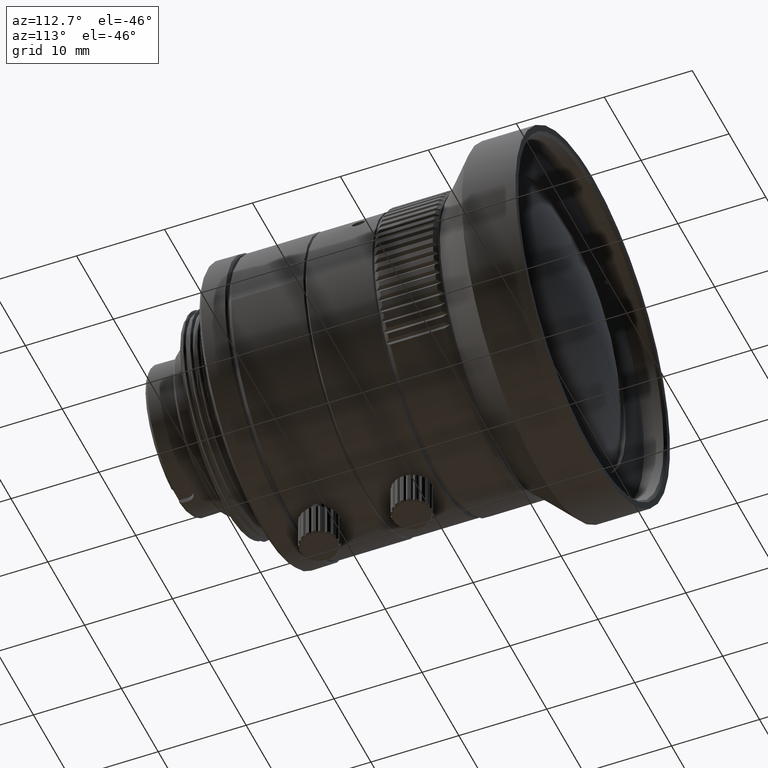
[diagram: clean part render]
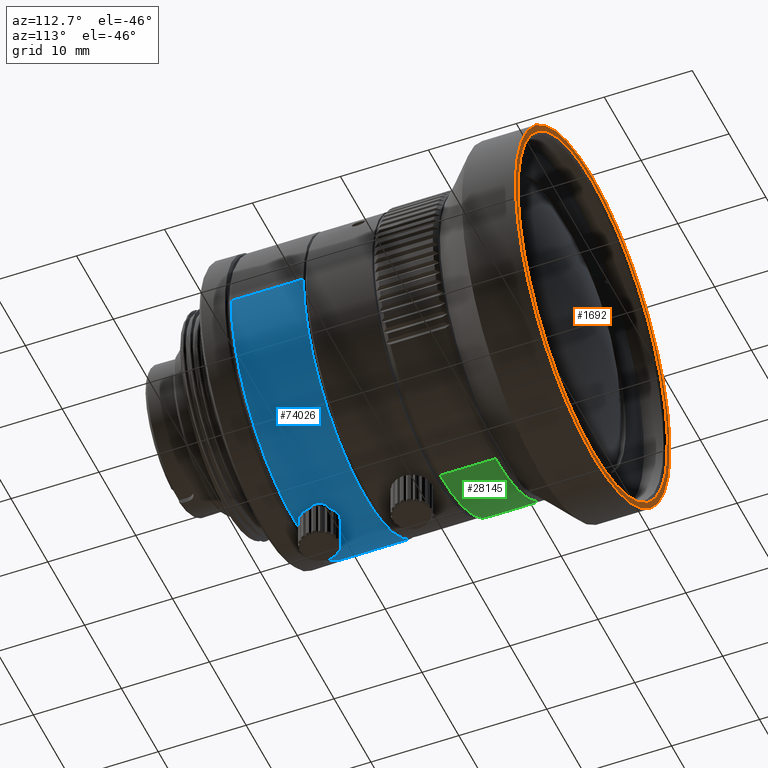
[diagram: same view with three faces highlighted in distinct colors, each labeled with its STEP entity id]
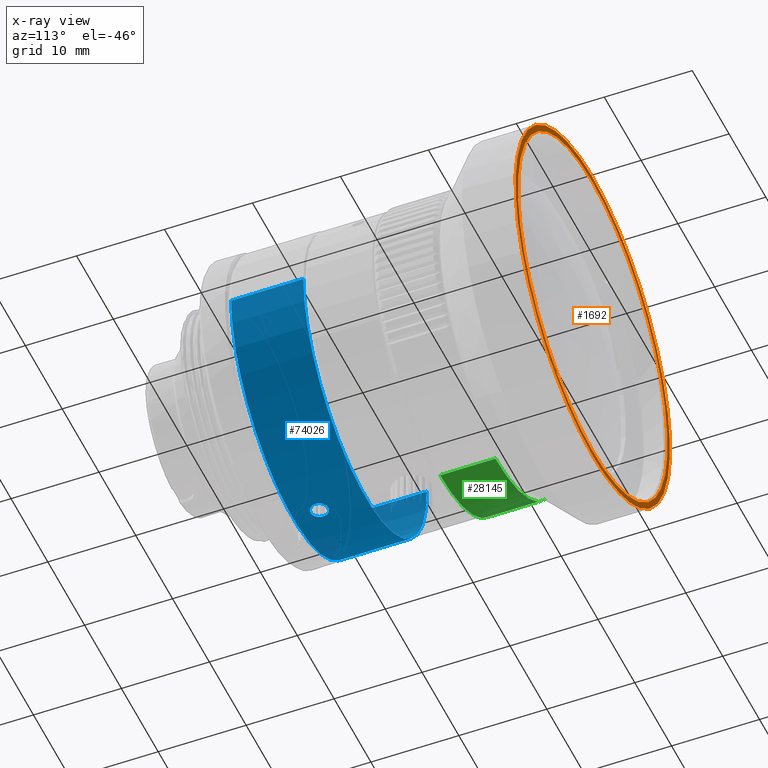
[diagram: x-ray of the same camera — body ghosted, the three highlighted faces saturated]
A machine part, auxiliary view with three faces highlighted in distinct colors.
The next image is the same camera in x-ray (body ghosted, the three faces saturated) — at least one of them is partly hidden behind the body in this view.
Their STEP definitions:

[orange] entity #1692 — the highlighted planar face has unit normal (0, 1, 0).
#124 = CARTESIAN_POINT ( 'NONE',  ( 3.308883417756427914, 27.77094953857999826, -20.02970275189952787 ) ) ;
#586 = CARTESIAN_POINT ( 'NONE',  ( 15.54227877841246830, 27.77094953857999471, -13.08791756640468584 ) ) ;
#1055 = CARTESIAN_POINT ( 'NONE',  ( 14.88352006305149011, 27.77094953858001247, -13.82048584559242066 ) ) ;
#1191 = CARTESIAN_POINT ( 'NONE',  ( -19.95756926664443398, 27.77094953858000537, 3.712921306351357309 ) ) ;
#1524 = CARTESIAN_POINT ( 'NONE',  ( 19.32074619874360266, 27.77094953858000181, -6.291415398159006855 ) ) ;
#1661 = CARTESIAN_POINT ( 'NONE',  ( -10.08941677592255637, 27.77094953858000892, 17.62116052388753218 ) ) ;
#1692 = ADVANCED_FACE ( 'NONE', ( #12418, #33177 ), #24688, .T. ) ;
#1981 = CARTESIAN_POINT ( 'NONE',  ( 19.77129405529472805, 27.77094953858000181, -4.608273709505491311 ) ) ;
#2117 = CARTESIAN_POINT ( 'NONE',  ( -18.97906917671840077, 27.77094953857999471, -7.203965547156065519 ) ) ;
#2449 = CARTESIAN_POINT ( 'NONE',  ( 18.47502927800732664, 27.77094953858000181, 8.436784630475480995 ) ) ;
#2583 = CARTESIAN_POINT ( 'NONE',  ( -12.28106360732852842, 27.77094953857999826, 16.22436297494803625 ) ) ;
#2739 = CARTESIAN_POINT ( 'NONE',  ( -9.306175334618080441, 27.77094953858000537, 18.87549216864756829 ) ) ;
#3055 = CARTESIAN_POINT ( 'NONE',  ( -19.96813284271629385, 27.77094953858000181, -3.655682769673688437 ) ) ;
#3209 = CARTESIAN_POINT ( 'NONE',  ( -12.80978563038172346, 27.77094953858000181, 16.69726013665102471 ) ) ;
#3230 = CARTESIAN_POINT ( 'NONE',  ( 20.32834962240369592, 27.77094953857999826, 5.444933938691601583 ) ) ;
#3521 = CARTESIAN_POINT ( 'NONE',  ( -17.17633881941769047, 27.77094953858000537, -10.81995371662929450 ) ) ;
#3702 = CARTESIAN_POINT ( 'NONE',  ( 20.99999999999999289, 27.77094953857999826, 1.374446785945533156 ) ) ;
#4152 = CARTESIAN_POINT ( 'NONE',  ( -5.444933939720859151, 27.77094953858000537, 20.32834962212637819 ) ) ;
#4462 = CARTESIAN_POINT ( 'NONE',  ( -17.62116052458069504, 27.77094953857999471, -10.08941677472052234 ) ) ;
#4793 = CARTESIAN_POINT ( 'NONE',  ( 13.19658084020114863, 27.77094953858000537, 15.45147894193493876 ) ) ;
#4925 = CARTESIAN_POINT ( 'NONE',  ( -15.34494428986156755, 27.77094953857999826, -13.36353846735306128 ) ) ;
#5080 = CARTESIAN_POINT ( 'NONE',  ( -6.766528825490603083, 27.77094953858000181, -19.92744819642330611 ) ) ;
#5833 = CARTESIAN_POINT ( 'NONE',  ( 7.402879493661681742, 27.77094953858000537, -18.90280562963060262 ) ) ;
#6453 = CARTESIAN_POINT ( 'NONE',  ( -18.87549216890465686, 27.77094953857999826, -9.306175334096630891 ) ) ;
#7195 = CARTESIAN_POINT ( 'NONE',  ( 0.6506301344887496230, 27.77094953857999826, -20.30000000008906724 ) ) ;
#7499 = VERTEX_POINT ( 'NONE', #91115 ) ;
#8127 = CARTESIAN_POINT ( 'NONE',  ( 11.86569896295919335, 27.77094953858000181, -16.48495743591383444 ) ) ;
#8266 = CARTESIAN_POINT ( 'NONE',  ( -6.393169122673925564, 27.77094953858000181, 19.27204896547289792 ) ) ;
#8598 = CARTESIAN_POINT ( 'NONE',  ( 19.95918469027320441, 27.77094953857999471, 3.705241636535025584 ) ) ;
#8734 = CARTESIAN_POINT ( 'NONE',  ( -20.25766574759400029, 27.77094953858000892, -1.547864095263284057 ) ) ;
#9055 = CARTESIAN_POINT ( 'NONE',  ( 17.75786521809117957, 27.77094953857999826, -9.873225691374626578 ) ) ;
#9192 = CARTESIAN_POINT ( 'NONE',  ( -19.27204896591742411, 27.77094953857999826, -6.393169121327086479 ) ) ;
#9508 = CARTESIAN_POINT ( 'NONE',  ( 20.00516139876618027, 27.77094953857999826, 3.454838905718677466 ) ) ;
#9639 = CARTESIAN_POINT ( 'NONE',  ( -16.79705040911274949, 27.77094953857999471, 11.39989070945241423 ) ) ;
#9800 = CARTESIAN_POINT ( 'NONE',  ( -6.766528826591597934, 27.77094953857999116, 19.92744819604945761 ) ) ;
#9972 = CARTESIAN_POINT ( 'NONE',  ( 20.10134101169738585, 27.77094953857999826, 2.869478651132976843 ) ) ;
#10105 = CARTESIAN_POINT ( 'NONE',  ( -3.617518985897838935, 27.77094953857999116, 19.97508195558300059 ) ) ;
#10266 = CARTESIAN_POINT ( 'NONE',  ( -16.69726013771265372, 27.77094953857999826, 12.80978562899792017 ) ) ;
#10581 = CARTESIAN_POINT ( 'NONE',  ( -11.39989071060519699, 27.77094953858000181, -16.79705040832981666 ) ) ;
#10759 = CARTESIAN_POINT ( 'NONE',  ( 20.86463215453198572, 27.77094953857999826, 2.748859585985782061 ) ) ;
#10914 = CARTESIAN_POINT ( 'NONE',  ( 2.591142058577005525, 27.77094953858000181, 20.17599266016187798 ) ) ;
#11393 = CARTESIAN_POINT ( 'NONE',  ( 8.028496943604281455, 27.77094953857999471, 18.64513728434717876 ) ) ;
#11663 = B_SPLINE_CURVE_WITH_KNOTS ( 'NONE', 3,
 ( #50872, #15511, #79639, #87184, #80109, #15044, #44278, #37205, #65953, #30133, #58888, #87645, #32459, #68745, #31986, #83838, #69219, #3702, #10759, #3230, #39998, #61220, #53664, #47077, #33397, #18768, #76302, #89032, #68269, #54138, #82429, #19236, #33866, #60740 ),
 .UNSPECIFIED., .F., .F.,
 ( 4, 2, 2, 2, 2, 2, 2, 2, 2, 2, 2, 2, 2, 2, 2, 2, 4 ),
 ( 0.000000000000000000, 0.06249999999999997224, 0.1249999999999999445, 0.1874999999999999167, 0.2499999999999998890, 0.3124999999999998890, 0.3749999999999998335, 0.4374999999999997780, 0.4999999999999997780, 0.5624999999999997780, 0.6249999999999997780, 0.6874999999999996669, 0.7499999999999996669, 0.8124999999999997780, 0.8749999999999997780, 0.9374999999999998890, 1.000000000000000000 ),
 .UNSPECIFIED. ) ;
#11863 = CARTESIAN_POINT ( 'NONE',  ( 4.033420172732584241, 27.77094953858001247, 19.89531011580194431 ) ) ;
#12418 = FACE_BOUND ( 'NONE', #89078, .T. ) ;
#12454 = CARTESIAN_POINT ( 'NONE',  ( -13.08168690005598300, 27.77094953858000181, -15.55074834970034026 ) ) ;
#12611 = CARTESIAN_POINT ( 'NONE',  ( -9.306175333575204434, 27.77094953857999826, -18.87549216916173478 ) ) ;
#13248 = CARTESIAN_POINT ( 'NONE',  ( -2.778684160553780139E-09, 27.77094953857891468, -20.30000000000108784 ) ) ;
#13873 = B_SPLINE_CURVE_WITH_KNOTS ( 'NONE', 3,
 ( #36095, #49774, #64844, #29023, #45486, #66252, #52098, #10105, #52559, #22879, #22415, #81326, #8266, #74241, #37035, #45951, #51169, #38410, #15337, #24265, #1661, #31339, #65784, #51628, #74707, #2583, #87936, #30881, #80400, #16721, #79936, #9639, #23348, #60561, #44103, #15802, #23801, #30422, #80867, #59634, #72858, #58717, #66707, #53013, #38874, #81779, #44575, #73328, #17185, #88395, #1191, #88854, #29964, #87475, #8734, #37504, #16267, #67627, #45043, #67161, #3055, #59177, #60095, #73790, #9192, #37957, #2117, #31805, #68558, #54423, #33216, #82244, #4462, #26602, #3521, #69032, #48288, #18591, #4925, #46891, #12454, #17648, #62432, #10581, #39343, #75649, #24732, #83188, #55351, #47357, #61969, #41211, #61502, #46416, #69959, #47824, #75179, #76120, #77044, #32745, #39811, #68087, #33682, #40284, #89790, #32271 ),
 .UNSPECIFIED., .F., .F.,
 ( 4, 1, 1, 1, 1, 1, 2, 2, 1, 1, 1, 1, 2, 2, 1, 1, 1, 2, 2, 2, 1, 1, 1, 2, 2, 1, 1, 1, 1, 2, 2, 1, 1, 1, 1, 1, 2, 2, 2, 1, 1, 1, 1, 1, 2, 2, 1, 1, 1, 1, 2, 2, 1, 1, 1, 2, 2, 2, 1, 1, 1, 2, 2, 1, 1, 1, 1, 2, 2, 1, 1, 1, 1, 1, 2, 2, 4 ),
 ( 0.000000000000000000, 0.03125000000000165146, 0.04687500000000247719, 0.05468750000000290740, 0.05859375000000311556, 0.06054687500000320577, 0.06152343750000324740, 0.06250000000000327516, 0.09375000000000370537, 0.1093750000000039135, 0.1171875000000040801, 0.1210937500000041356, 0.1230468750000041633, 0.1250000000000041633, 0.1562500000000044409, 0.1718750000000044964, 0.1796875000000044964, 0.1835937500000045519, 0.1875000000000045797, 0.2500000000000046074, 0.2812500000000046629, 0.2968750000000047184, 0.3046875000000047184, 0.3085937500000047740, 0.3125000000000047740, 0.3437500000000053846, 0.3593750000000057176, 0.3671875000000058842, 0.3710937500000059397, 0.3730468750000059397, 0.3750000000000059397, 0.4062500000000054401, 0.4218750000000051625, 0.4296875000000049960, 0.4335937500000049405, 0.4355468750000048850, 0.4365234375000048850, 0.4375000000000048295, 0.5000000000000036637, 0.5312500000000031086, 0.5468750000000027756, 0.5546875000000026645, 0.5585937500000026645, 0.5605468750000026645, 0.5615234375000025535, 0.5625000000000025535, 0.5937500000000019984, 0.6093750000000016653, 0.6171875000000015543, 0.6210937500000015543, 0.6230468750000015543, 0.6250000000000014433, 0.6562500000000001110, 0.6718749999999995559, 0.6796874999999993339, 0.6835937499999990008, 0.6874999999999987788, 0.7499999999999972244, 0.7812499999999964473, 0.7968749999999961142, 0.8046874999999960032, 0.8085937499999960032, 0.8124999999999960032, 0.8437499999999968914, 0.8593749999999973355, 0.8671874999999975575, 0.8710937499999977796, 0.8730468749999978906, 0.8749999999999978906, 0.9062499999999987788, 0.9218749999999992228, 0.9296874999999994449, 0.9335937499999994449, 0.9355468749999994449, 0.9365234374999995559, 0.9374999999999995559, 1.000000000000000000 ),
 .UNSPECIFIED. ) ;
#14269 = CARTESIAN_POINT ( 'NONE',  ( -2.778684160553780139E-09, 27.77094953857891468, -20.30000000000108784 ) ) ;
#14732 = CARTESIAN_POINT ( 'NONE',  ( 6.617576824321831808, 27.77094953857999471, -19.19637443430599077 ) ) ;
#15044 = CARTESIAN_POINT ( 'NONE',  ( 9.306175333727885857, 27.77094953857999826, -18.87549216908822203 ) ) ;
#15203 = CARTESIAN_POINT ( 'NONE',  ( 13.56691697332045621, 27.77094953858000181, -15.10743791805652414 ) ) ;
#15337 = CARTESIAN_POINT ( 'NONE',  ( -8.110000200774397427, 27.77094953857999471, 18.62227052719136822 ) ) ;
#15511 = CARTESIAN_POINT ( 'NONE',  ( 1.374446785945534710, 27.77094953858000181, -20.99999999999999645 ) ) ;
#15669 = CARTESIAN_POINT ( 'NONE',  ( 8.344695252536387997, 27.77094953858000892, -18.51812346056600944 ) ) ;
#15802 = CARTESIAN_POINT ( 'NONE',  ( -17.88325381346683329, 27.77094953858000181, 9.649315338519720342 ) ) ;
#16130 = CARTESIAN_POINT ( 'NONE',  ( 19.86053378334532482, 27.77094953857999826, -4.201924854177388369 ) ) ;
#16267 = CARTESIAN_POINT ( 'NONE',  ( -20.05377964117828427, 27.77094953857999826, -3.158995985360611769 ) ) ;
#16589 = CARTESIAN_POINT ( 'NONE',  ( 16.72189856158729171, 27.77094953858000537, -11.50979730414395696 ) ) ;
#16721 = CARTESIAN_POINT ( 'NONE',  ( -16.29533824346587068, 27.77094953858000537, 12.11499284683576860 ) ) ;
#17051 = CARTESIAN_POINT ( 'NONE',  ( 18.70790086804200314, 27.77094953857999471, -7.880744550968081796 ) ) ;
#17185 = CARTESIAN_POINT ( 'NONE',  ( -19.94596895204935194, 27.77094953857999826, 3.774747814238838206 ) ) ;
#17343 = CARTESIAN_POINT ( 'NONE',  ( -21.00000000003797140, 27.77094953857998760, 1.374446785341223665 ) ) ;
#17648 = CARTESIAN_POINT ( 'NONE',  ( -12.11499284796009235, 27.77094953858000181, -16.29533824262900765 ) ) ;
#17809 = CARTESIAN_POINT ( 'NONE',  ( -18.22446357988059162, 27.77094953858000181, 10.52416415649888037 ) ) ;
#17988 = CARTESIAN_POINT ( 'NONE',  ( 14.53526648446618097, 27.77094953857999116, 14.17119781841828541 ) ) ;
#18458 = CARTESIAN_POINT ( 'NONE',  ( 6.145685434393162616, 27.77094953857999471, 19.36795497074173866 ) ) ;
#18549 = DIRECTION ( 'NONE',  ( 0.000000000000000000, -0.000000000000000000, 1.000000000000000000 ) ) ;
#18591 = CARTESIAN_POINT ( 'NONE',  ( -16.22436297576886588, 27.77094953858000181, -12.28106360623575988 ) ) ;
#18768 = CARTESIAN_POINT ( 'NONE',  ( 13.87736176219535622, 27.77094953857999826, 15.82112304763964516 ) ) ;
#18919 = CARTESIAN_POINT ( 'NONE',  ( 13.94331722324195155, 27.77094953858000537, 14.76931030568577974 ) ) ;
#19236 = CARTESIAN_POINT ( 'NONE',  ( 2.748859585985789611, 27.77094953857999826, 20.86463215453198572 ) ) ;
#20136 = CARTESIAN_POINT ( 'NONE',  ( -10.52416415700233010, 27.77094953858000181, -18.22446357958984819 ) ) ;
#20232 = EDGE_CURVE ( 'NONE', #90844, #55916, #29234, .T. ) ;
#22275 = CARTESIAN_POINT ( 'NONE',  ( 15.21009599153400060, 27.77094953858000181, 13.45131977901110787 ) ) ;
#22415 = CARTESIAN_POINT ( 'NONE',  ( -4.341043814380903143, 27.77094953857999826, 19.84135161912973544 ) ) ;
#22745 = CARTESIAN_POINT ( 'NONE',  ( 18.94248504014426615, 27.77094953857999471, 7.302224668862263179 ) ) ;
#22879 = CARTESIAN_POINT ( 'NONE',  ( -3.673625156001148806, 27.77094953857999826, 19.96484108387382861 ) ) ;
#23214 = CARTESIAN_POINT ( 'NONE',  ( 16.58154376172595335, 27.77094953857999471, -11.71287767462651530 ) ) ;
#23348 = CARTESIAN_POINT ( 'NONE',  ( -16.89468481182889192, 27.77094953858000181, 11.25465927339194039 ) ) ;
#23667 = CARTESIAN_POINT ( 'NONE',  ( 19.91075064786128834, 27.77094953857999116, 3.957127878431432322 ) ) ;
#23801 = CARTESIAN_POINT ( 'NONE',  ( -18.40582130950541639, 27.77094953858000537, 8.574811994221066769 ) ) ;
#24129 = CARTESIAN_POINT ( 'NONE',  ( 17.08268813045870260, 27.77094953857999826, 10.96716619301561479 ) ) ;
#24265 = CARTESIAN_POINT ( 'NONE',  ( -9.042762822173314063, 27.77094953858000537, 18.19748483461648547 ) ) ;
#24420 = CARTESIAN_POINT ( 'NONE',  ( -19.92744819661023215, 27.77094953858000181, 6.766528824940087006 ) ) ;
#24688 = PLANE ( 'NONE',  #89068 ) ;
#24732 = CARTESIAN_POINT ( 'NONE',  ( -10.53433614865818235, 27.77094953858000537, -17.36631358050459895 ) ) ;
#25072 = CARTESIAN_POINT ( 'NONE',  ( 11.86058129284274720, 27.77094953858000181, 16.47826114362826999 ) ) ;
#25165 = CARTESIAN_POINT ( 'NONE',  ( 0.000000000000000000, 27.77094953857999826, 0.000000000000000000 ) ) ;
#26288 = VERTEX_POINT ( 'NONE', #82290 ) ;
#26602 = CARTESIAN_POINT ( 'NONE',  ( -17.31281311856897887, 27.77094953858000537, -10.60235147547720480 ) ) ;
#27221 = CARTESIAN_POINT ( 'NONE',  ( -1.374446785921364489, 27.77094953857999471, -20.99999999999999289 ) ) ;
#28138 = CARTESIAN_POINT ( 'NONE',  ( -18.22446357929911898, 27.77094953857999826, -10.52416415750579226 ) ) ;
#28610 = CARTESIAN_POINT ( 'NONE',  ( -1.714505518806294638E-15, 27.77094953857999826, -21.00000000000000000 ) ) ;
#28893 = CARTESIAN_POINT ( 'NONE',  ( 3.708772744850663994, 27.77094953858000537, -19.95837431136379081 ) ) ;
#29023 = CARTESIAN_POINT ( 'NONE',  ( -2.623162034966997069, 27.77094953857999826, 20.13407970841076988 ) ) ;
#29234 = B_SPLINE_CURVE_WITH_KNOTS ( 'NONE', 3,
 ( #14269, #7195, #35962, #64718, #124, #34595, #28893, #43500, #57643, #41658, #50564, #14732, #70409, #5833, #63339, #15669, #51493, #73653, #79801, #37820, #44901, #8127, #72724, #15203, #29362, #67024, #37366, #66116, #31206, #1055, #586, #45814, #23214, #16589, #45351, #44437, #36893, #9055, #59956, #74107, #52420, #51959, #66568, #17051, #73191, #1524, #65646, #1981, #30744, #16130, #29825, #30287, #43966, #59500, #88262, #9972, #9508, #8598, #58579, #23667, #87341, #59042, #88719, #22745, #58108, #74571, #80729, #38277, #2449, #87803, #80270, #81189, #24129, #52877, #81643, #38739, #86876, #22275, #51030, #89653, #17988, #67951, #18919, #4793, #46287, #25072, #54291, #76451, #32137, #46758, #40620, #11393, #83054, #82110, #39677, #18458, #67490, #40152, #75042, #11863, #60893, #39210, #10914, #53814, #90133 ),
 .UNSPECIFIED., .F., .F.,
 ( 4, 1, 1, 1, 1, 2, 2, 1, 1, 2, 2, 1, 1, 2, 2, 1, 1, 1, 1, 2, 2, 1, 1, 1, 2, 2, 1, 1, 1, 1, 2, 2, 1, 1, 1, 2, 2, 2, 1, 1, 1, 2, 2, 1, 1, 1, 1, 2, 2, 1, 1, 1, 2, 2, 1, 1, 1, 2, 2, 1, 2, 2, 1, 1, 1, 2, 2, 1, 1, 1, 1, 2, 2, 4 ),
 ( 0.000000000000000000, 0.03125000000000166533, 0.04687500000000251188, 0.05468750000000294209, 0.05859375000000315720, 0.06054687500000325434, 0.06250000000000335842, 0.09375000000000482947, 0.1093750000000055789, 0.1171875000000059674, 0.1250000000000063560, 0.1562500000000079936, 0.1718750000000087708, 0.1796875000000091871, 0.1875000000000096034, 0.2187500000000113243, 0.2343750000000121292, 0.2421875000000125178, 0.2460937500000126843, 0.2480468750000127953, 0.2500000000000128786, 0.2812500000000140998, 0.2968750000000146549, 0.3046875000000148770, 0.3085937500000150990, 0.3125000000000153211, 0.3437500000000170974, 0.3593750000000179856, 0.3671875000000183742, 0.3710937500000185407, 0.3730468750000185407, 0.3750000000000185407, 0.4062500000000178191, 0.4218750000000174305, 0.4296875000000172085, 0.4335937500000170974, 0.4375000000000169864, 0.5000000000000155431, 0.5312500000000147660, 0.5468750000000143219, 0.5546875000000142109, 0.5585937500000140998, 0.5625000000000139888, 0.5937500000000131006, 0.6093750000000126565, 0.6171875000000124345, 0.6210937500000123235, 0.6230468750000123235, 0.6250000000000123235, 0.6562500000000119904, 0.6718750000000117684, 0.6796875000000117684, 0.6835937500000117684, 0.6875000000000117684, 0.7187500000000106581, 0.7343750000000099920, 0.7421875000000097700, 0.7460937500000096589, 0.7500000000000095479, 0.7812500000000085487, 0.7968750000000079936, 0.8125000000000075495, 0.8437500000000067724, 0.8593750000000062172, 0.8671875000000059952, 0.8710937500000058842, 0.8750000000000057732, 0.9062500000000044409, 0.9218750000000036637, 0.9296875000000033307, 0.9335937500000031086, 0.9355468750000029976, 0.9375000000000028866, 1.000000000000000000 ),
 .UNSPECIFIED. ) ;
#29362 = CARTESIAN_POINT ( 'NONE',  ( 13.99794956432537774, 27.77094953857999826, -14.70371782303328168 ) ) ;
#29825 = CARTESIAN_POINT ( 'NONE',  ( 19.87727570096943097, 27.77094953857999826, -4.122019474152619267 ) ) ;
#29964 = CARTESIAN_POINT ( 'NONE',  ( -20.29996757119749518, 27.77094953857999471, 1.241294688441789473 ) ) ;
#30133 = CARTESIAN_POINT ( 'NONE',  ( 15.82112304763963806, 27.77094953857999826, -13.87736176219535444 ) ) ;
#30287 = CARTESIAN_POINT ( 'NONE',  ( 20.16469333376409168, 27.77094953857999471, -2.706430622036697375 ) ) ;
#30422 = CARTESIAN_POINT ( 'NONE',  ( -18.64697269713370531, 27.77094953857999826, 8.027065555268853458 ) ) ;
#30744 = CARTESIAN_POINT ( 'NONE',  ( 19.82542276470222831, 27.77094953858000892, -4.364646044986041140 ) ) ;
#30881 = CARTESIAN_POINT ( 'NONE',  ( -14.84963225219780014, 27.77094953858000181, 13.85892934338680860 ) ) ;
#31060 = EDGE_CURVE ( 'NONE', #7499, #26288, #35376, .T. ) ;
#31206 = CARTESIAN_POINT ( 'NONE',  ( 14.39063308775705963, 27.77094953858000537, -14.31786767118177650 ) ) ;
#31339 = CARTESIAN_POINT ( 'NONE',  ( -10.60235147665979838, 27.77094953857999471, 17.31281311784180588 ) ) ;
#31498 = CARTESIAN_POINT ( 'NONE',  ( -1.374446787081628818, 27.77094953858000537, 20.99999999992405719 ) ) ;
#31805 = CARTESIAN_POINT ( 'NONE',  ( -18.93469989557056721, 27.77094953857999116, -7.319077950525801235 ) ) ;
#31964 = CARTESIAN_POINT ( 'NONE',  ( -13.87736176286804479, 27.77094953857999471, 15.82112304704750017 ) ) ;
#31986 = CARTESIAN_POINT ( 'NONE',  ( 20.32834962240369947, 27.77094953857999826, -5.444933938691606023 ) ) ;
#32137 = CARTESIAN_POINT ( 'NONE',  ( 9.864664760928764764, 27.77094953857999471, 17.76506029774834161 ) ) ;
#32271 = CARTESIAN_POINT ( 'NONE',  ( -2.778684160553780139E-09, 27.77094953857891468, -20.30000000000108784 ) ) ;
#32459 = CARTESIAN_POINT ( 'NONE',  ( 18.87549216908822558, 27.77094953857999471, -9.306175333727889409 ) ) ;
#32745 = CARTESIAN_POINT ( 'NONE',  ( -3.835375611692370956, 27.77094953858000537, -19.93446449171914026 ) ) ;
#33177 = FACE_OUTER_BOUND ( 'NONE', #42992, .T. ) ;
#33189 = ORIENTED_EDGE ( 'NONE', *, *, #68484, .T. ) ;
#33216 = CARTESIAN_POINT ( 'NONE',  ( -18.62227052774843372, 27.77094953858000181, -8.110000199502897189 ) ) ;
#33397 = CARTESIAN_POINT ( 'NONE',  ( 15.82112304763964516, 27.77094953857999826, 13.87736176219535444 ) ) ;
#33495 = EDGE_CURVE ( 'NONE', #26288, #7499, #11663, .T. ) ;
#33682 = CARTESIAN_POINT ( 'NONE',  ( -3.712924047013201889, 27.77094953857999826, -19.95756875940335817 ) ) ;
#33866 = CARTESIAN_POINT ( 'NONE',  ( 1.374446785945539817, 27.77094953858000537, 20.99999999999999645 ) ) ;
#34595 = CARTESIAN_POINT ( 'NONE',  ( 3.588878193589619681, 27.77094953857999471, -19.98053577930672375 ) ) ;
#35376 = B_SPLINE_CURVE_WITH_KNOTS ( 'NONE', 3,
 ( #55052, #31498, #74394, #4152, #9800, #2739, #60249, #3209, #31964, #89010, #10266, #17809, #67781, #24420, #81934, #53171, #17343, #60719, #89480, #35676, #55513, #6453, #28138, #78578, #55971, #71496, #70580, #20136, #12611, #5080, #56888, #56429, #27221, #28610 ),
 .UNSPECIFIED., .F., .F.,
 ( 4, 2, 2, 2, 2, 2, 2, 2, 2, 2, 2, 2, 2, 2, 2, 2, 4 ),
 ( 0.000000000000000000, 0.06250000000000001388, 0.1250000000000000278, 0.1875000000000000555, 0.2500000000000000555, 0.3125000000000000555, 0.3750000000000001110, 0.4375000000000001110, 0.5000000000000000000, 0.5625000000000000000, 0.6250000000000000000, 0.6875000000000000000, 0.7500000000000000000, 0.8125000000000001110, 0.8750000000000001110, 0.9375000000000001110, 1.000000000000000000 ),
 .UNSPECIFIED. ) ;
#35676 = CARTESIAN_POINT ( 'NONE',  ( -20.32834962227679654, 27.77094953857999826, -5.444933939159269265 ) ) ;
#35962 = CARTESIAN_POINT ( 'NONE',  ( 1.622171721816058954, 27.77094953857999826, -20.25349724778275018 ) ) ;
#36095 = CARTESIAN_POINT ( 'NONE',  ( -9.944132009077394199E-16, 27.77094953857891468, 20.30000000000108784 ) ) ;
#36893 = CARTESIAN_POINT ( 'NONE',  ( 17.26309093927628879, 27.77094953857999116, -10.70008053142147197 ) ) ;
#37035 = CARTESIAN_POINT ( 'NONE',  ( -7.203965548463715507, 27.77094953858000181, 18.97906917622317380 ) ) ;
#37205 = CARTESIAN_POINT ( 'NONE',  ( 12.80978562965225542, 27.77094953857999116, -16.69726013721264835 ) ) ;
#37366 = CARTESIAN_POINT ( 'NONE',  ( 14.30006619709775428, 27.77094953857999826, -14.40833062142780463 ) ) ;
#37504 = CARTESIAN_POINT ( 'NONE',  ( -20.13410098993619002, 27.77094953858000181, -2.623047015125688386 ) ) ;
#37820 = CARTESIAN_POINT ( 'NONE',  ( 11.01949969395416851, 27.77094953858000181, -17.04963669029436346 ) ) ;
#37957 = CARTESIAN_POINT ( 'NONE',  ( -19.08008247384868383, 27.77094953858000181, -6.934654281830384903 ) ) ;
#38277 = CARTESIAN_POINT ( 'NONE',  ( 18.73954954680184315, 27.77094953858000537, 7.805181748464019797 ) ) ;
#38410 = CARTESIAN_POINT ( 'NONE',  ( -7.432467754013453387, 27.77094953857999471, 18.89047951070991260 ) ) ;
#38739 = CARTESIAN_POINT ( 'NONE',  ( 16.54154383218152091, 27.77094953858000892, 11.78568458008008690 ) ) ;
#38874 = CARTESIAN_POINT ( 'NONE',  ( -19.72458669181721547, 27.77094953858000537, 4.819246917001987818 ) ) ;
#39210 = CARTESIAN_POINT ( 'NONE',  ( 3.908470931724969510, 27.77094953858000181, 19.92022752174577249 ) ) ;
#39343 = CARTESIAN_POINT ( 'NONE',  ( -11.25465927454989590, 27.77094953857999826, -16.89468481105719277 ) ) ;
#39677 = CARTESIAN_POINT ( 'NONE',  ( 7.092755550690020172, 27.77094953858000537, 19.03248168278362940 ) ) ;
#39811 = CARTESIAN_POINT ( 'NONE',  ( -3.774747815601056544, 27.77094953858000537, -19.94596895179254048 ) ) ;
#39998 = CARTESIAN_POINT ( 'NONE',  ( 19.92744819638582854, 27.77094953857999826, 6.766528825605882425 ) ) ;
#40152 = CARTESIAN_POINT ( 'NONE',  ( 4.444144948077123125, 27.77094953857999826, 19.80885485262702872 ) ) ;
#40284 = CARTESIAN_POINT ( 'NONE',  ( -2.473108817759334777, 27.77094953858000181, -20.18703299262200446 ) ) ;
#40620 = CARTESIAN_POINT ( 'NONE',  ( 8.262654313175966436, 27.77094953857999826, 18.54376396946175731 ) ) ;
#41211 = CARTESIAN_POINT ( 'NONE',  ( -7.631507749515010985, 27.77094953857999471, -18.81095503975421579 ) ) ;
#41658 = CARTESIAN_POINT ( 'NONE',  ( 4.528439590452554064, 27.77094953858000181, -19.79989445342159726 ) ) ;
#42992 = EDGE_LOOP ( 'NONE', ( #56778, #47423 ) ) ;
#43500 = CARTESIAN_POINT ( 'NONE',  ( 3.788679510177954679, 27.77094953858000181, -19.94335779756620042 ) ) ;
#43966 = CARTESIAN_POINT ( 'NONE',  ( 20.29996581061391936, 27.77094953857999826, -1.359503529105159370 ) ) ;
#44103 = CARTESIAN_POINT ( 'NONE',  ( -17.36631358123606361, 27.77094953857999826, 10.53433614745152269 ) ) ;
#44278 = CARTESIAN_POINT ( 'NONE',  ( 10.52416415717103249, 27.77094953857998760, -18.22446357949425177 ) ) ;
#44437 = CARTESIAN_POINT ( 'NONE',  ( 16.86173985429580924, 27.77094953857999471, -11.30389905742470624 ) ) ;
#44575 = CARTESIAN_POINT ( 'NONE',  ( -19.90699299127156863, 27.77094953857999826, 3.976658105137555133 ) ) ;
#44901 = CARTESIAN_POINT ( 'NONE',  ( 11.16306361215967868, 27.77094953858000181, -16.95595646696760639 ) ) ;
#45043 = CARTESIAN_POINT ( 'NONE',  ( -19.98542783026593384, 27.77094953857999826, -3.560239123794683991 ) ) ;
#45351 = CARTESIAN_POINT ( 'NONE',  ( 16.81469589232091622, 27.77094953857999116, -11.37377742856238072 ) ) ;
#45486 = CARTESIAN_POINT ( 'NONE',  ( -3.159063080836708171, 27.77094953858000181, 20.05376722684365021 ) ) ;
#45814 = CARTESIAN_POINT ( 'NONE',  ( 16.24593760238986206, 27.77094953858000537, -12.18008577219063859 ) ) ;
#45951 = CARTESIAN_POINT ( 'NONE',  ( -7.319077951826805872, 27.77094953858000181, 18.93469989506836981 ) ) ;
#46287 = CARTESIAN_POINT ( 'NONE',  ( 12.40143562300660740, 27.77094953858000892, 16.07532465297837021 ) ) ;
#46416 = CARTESIAN_POINT ( 'NONE',  ( -7.510570152033286817, 27.77094953857999471, -18.85955953080613767 ) ) ;
#46758 = CARTESIAN_POINT ( 'NONE',  ( 8.803722774664800355, 27.77094953857999826, 18.29735616794118513 ) ) ;
#46891 = CARTESIAN_POINT ( 'NONE',  ( -13.85892934441003099, 27.77094953858000181, -14.84963225124340447 ) ) ;
#47077 = CARTESIAN_POINT ( 'NONE',  ( 16.69726013721265190, 27.77094953858000181, 12.80978562965225542 ) ) ;
#47357 = CARTESIAN_POINT ( 'NONE',  ( -8.027065556558916626, 27.77094953858000537, -18.64697269657630230 ) ) ;
#47423 = ORIENTED_EDGE ( 'NONE', *, *, #31060, .F. ) ;
#47824 = CARTESIAN_POINT ( 'NONE',  ( -5.929082248876454742, 27.77094953857999826, -19.43450550493436779 ) ) ;
#48288 = CARTESIAN_POINT ( 'NONE',  ( -17.03892424770635827, 27.77094953858000181, -11.03506389126174980 ) ) ;
#49774 = CARTESIAN_POINT ( 'NONE',  ( -0.6207349766411291991, 27.77094953858000537, 20.30000000000000782 ) ) ;
#50564 = CARTESIAN_POINT ( 'NONE',  ( 5.504101503862765199, 27.77094953857999471, -19.55996102047296503 ) ) ;
#50872 = CARTESIAN_POINT ( 'NONE',  ( -1.714505518806294638E-15, 27.77094953857999826, -21.00000000000000000 ) ) ;
#51030 = CARTESIAN_POINT ( 'NONE',  ( 14.82029285994581436, 27.77094953858000181, 13.87436640727134218 ) ) ;
#51169 = CARTESIAN_POINT ( 'NONE',  ( -7.395751396215151097, 27.77094953858000181, 18.90488084805586411 ) ) ;
#51493 = CARTESIAN_POINT ( 'NONE',  ( 9.265959765792835867, 27.77094953857999826, -18.08455041597083124 ) ) ;
#51628 = CARTESIAN_POINT ( 'NONE',  ( -10.96452700827365234, 27.77094953857999826, 17.08439475015246600 ) ) ;
#51959 = CARTESIAN_POINT ( 'NONE',  ( 18.66118187333514555, 27.77094953857999826, -7.990742359220388558 ) ) ;
#52098 = CARTESIAN_POINT ( 'NONE',  ( -3.560257695851890780, 27.77094953858000181, 19.98542439397161985 ) ) ;
#52420 = CARTESIAN_POINT ( 'NONE',  ( 18.61352432717201921, 27.77094953857999116, -8.101750434866197281 ) ) ;
#52559 = CARTESIAN_POINT ( 'NONE',  ( -3.655688205320394513, 27.77094953858000181, 19.96813183698583671 ) ) ;
#52877 = CARTESIAN_POINT ( 'NONE',  ( 16.99514388031760603, 27.77094953857998760, 11.10232352809002698 ) ) ;
#53013 = CARTESIAN_POINT ( 'NONE',  ( -19.43450550531821364, 27.77094953858000537, 5.929082247587646570 ) ) ;
#53171 = CARTESIAN_POINT ( 'NONE',  ( -20.86463215461270337, 27.77094953857999471, 2.748859585361044022 ) ) ;
#53664 = CARTESIAN_POINT ( 'NONE',  ( 18.22446357949425533, 27.77094953857999826, 10.52416415717103071 ) ) ;
#53814 = CARTESIAN_POINT ( 'NONE',  ( 1.301624766922665266, 27.77094953858000181, 20.30000000000000782 ) ) ;
#54138 = CARTESIAN_POINT ( 'NONE',  ( 6.766528825605885089, 27.77094953858000892, 19.92744819638582499 ) ) ;
#54291 = CARTESIAN_POINT ( 'NONE',  ( 11.58653131240427925, 27.77094953857999826, 16.67207187043860372 ) ) ;
#54423 = CARTESIAN_POINT ( 'NONE',  ( -18.89047951121848001, 27.77094953857999471, -7.432467752720378407 ) ) ;
#55052 = CARTESIAN_POINT ( 'NONE',  ( -4.641080077357142959E-10, 27.77094953857999471, 21.00000000000000000 ) ) ;
#55351 = CARTESIAN_POINT ( 'NONE',  ( -8.574811995504516560, 27.77094953857999826, -18.40582130890477330 ) ) ;
#55513 = CARTESIAN_POINT ( 'NONE',  ( -19.92744819623638008, 27.77094953857999826, -6.766528826041089850 ) ) ;
#55916 = VERTEX_POINT ( 'NONE', #64897 ) ;
#55971 = CARTESIAN_POINT ( 'NONE',  ( -15.82112304743086462, 27.77094953857999826, -13.87736176243098285 ) ) ;
#56429 = CARTESIAN_POINT ( 'NONE',  ( -2.748859585937453609, 27.77094953858000181, -20.86463215453676412 ) ) ;
#56778 = ORIENTED_EDGE ( 'NONE', *, *, #33495, .F. ) ;
#56888 = CARTESIAN_POINT ( 'NONE',  ( -5.444933938597707801, 27.77094953857999826, -20.32834962242720778 ) ) ;
#57643 = CARTESIAN_POINT ( 'NONE',  ( 3.827308889846548379, 27.77094953858000181, -19.93598320148978686 ) ) ;
#58108 = CARTESIAN_POINT ( 'NONE',  ( 18.83494594093088992, 27.77094953858000181, 7.572800454572020890 ) ) ;
#58579 = CARTESIAN_POINT ( 'NONE',  ( 19.92747646808241768, 27.77094953857999116, 3.872073246030279581 ) ) ;
#58717 = CARTESIAN_POINT ( 'NONE',  ( -18.85955953132094720, 27.77094953858000537, 7.510570150741053830 ) ) ;
#58888 = CARTESIAN_POINT ( 'NONE',  ( 16.69726013721264835, 27.77094953857999471, -12.80978562965226075 ) ) ;
#59042 = CARTESIAN_POINT ( 'NONE',  ( 19.51595611015480713, 27.77094953858000181, 5.656900951268381661 ) ) ;
#59177 = CARTESIAN_POINT ( 'NONE',  ( -19.96484108412508718, 27.77094953858000181, -3.673625154635405732 ) ) ;
#59500 = CARTESIAN_POINT ( 'NONE',  ( 20.30001709469305027, 27.77094953858000537, 0.6797517624685599502 ) ) ;
#59634 = CARTESIAN_POINT ( 'NONE',  ( -18.81095504027904042, 27.77094953857999471, 7.631507748223230081 ) ) ;
#59956 = CARTESIAN_POINT ( 'NONE',  ( 18.26447099968018506, 27.77094953858000537, -8.870475635245558266 ) ) ;
#60095 = CARTESIAN_POINT ( 'NONE',  ( -19.84135161943215664, 27.77094953858000537, -4.341043813001741469 ) ) ;
#60249 = CARTESIAN_POINT ( 'NONE',  ( -10.52416415800925442, 27.77094953858000181, 18.22446357900838620 ) ) ;
#60561 = CARTESIAN_POINT ( 'NONE',  ( -16.94409578924987159, 27.77094953858000181, 11.18011072534543082 ) ) ;
#60719 = CARTESIAN_POINT ( 'NONE',  ( -20.99999999996202504, 27.77094953857999826, -1.374446786501503093 ) ) ;
#60740 = CARTESIAN_POINT ( 'NONE',  ( -4.641080077357142959E-10, 27.77094953857999471, 21.00000000000000000 ) ) ;
#60893 = CARTESIAN_POINT ( 'NONE',  ( 3.951042360305396794, 27.77094953858000892, 19.91183050014895883 ) ) ;
#61220 = CARTESIAN_POINT ( 'NONE',  ( 18.87549216908821492, 27.77094953857999471, 9.306175333727878751 ) ) ;
#61502 = CARTESIAN_POINT ( 'NONE',  ( -7.552008881235853011, 27.77094953858000181, -18.84300852842314455 ) ) ;
#61969 = CARTESIAN_POINT ( 'NONE',  ( -7.750568645383566491, 27.77094953858000181, -18.76251530031534642 ) ) ;
#62432 = CARTESIAN_POINT ( 'NONE',  ( -11.61666802182477021, 27.77094953857999826, -16.64928846694224163 ) ) ;
#63339 = CARTESIAN_POINT ( 'NONE',  ( 7.556977274631323738, 27.77094953858000181, -18.84173373859317735 ) ) ;
#64718 = CARTESIAN_POINT ( 'NONE',  ( 2.747930574527011061, 27.77094953857999826, -20.11786421998890972 ) ) ;
#64844 = CARTESIAN_POINT ( 'NONE',  ( -1.548017454600830067, 27.77094953858000537, 20.25763737236019679 ) ) ;
#64897 = CARTESIAN_POINT ( 'NONE',  ( -9.944132009077394199E-16, 27.77094953857891468, 20.30000000000108784 ) ) ;
#65646 = CARTESIAN_POINT ( 'NONE',  ( 19.63475846324411123, 27.77094953858000181, -5.173559408196214626 ) ) ;
#65784 = CARTESIAN_POINT ( 'NONE',  ( -10.81995371780346105, 27.77094953857999826, 17.17633881867623202 ) ) ;
#65953 = CARTESIAN_POINT ( 'NONE',  ( 13.87736176219535444, 27.77094953857999116, -15.82112304763964161 ) ) ;
#66116 = CARTESIAN_POINT ( 'NONE',  ( 14.35997161794035648, 27.77094953857999116, -14.34862278441114647 ) ) ;
#66252 = CARTESIAN_POINT ( 'NONE',  ( -3.426595792693219789, 27.77094953857999826, 20.00897757366197283 ) ) ;
#66568 = CARTESIAN_POINT ( 'NONE',  ( 18.69274335983369184, 27.77094953857999826, -7.916623624039628382 ) ) ;
#66707 = CARTESIAN_POINT ( 'NONE',  ( -19.11699018872091926, 27.77094953857999826, 6.860361875093371253 ) ) ;
#67024 = CARTESIAN_POINT ( 'NONE',  ( 14.20995746629583678, 27.77094953857999471, -14.49758734629364731 ) ) ;
#67161 = CARTESIAN_POINT ( 'NONE',  ( -19.97508394303958923, 27.77094953857999826, -3.617508244339401990 ) ) ;
#67490 = CARTESIAN_POINT ( 'NONE',  ( 5.015531565686894844, 27.77094953858000181, 19.67580997505016427 ) ) ;
#67627 = CARTESIAN_POINT ( 'NONE',  ( -20.00898422431709633, 27.77094953858000892, -3.426559848054005375 ) ) ;
#67781 = CARTESIAN_POINT ( 'NONE',  ( -18.87549216941882335, 27.77094953857998760, 9.306175333053753107 ) ) ;
#67951 = CARTESIAN_POINT ( 'NONE',  ( 14.47916509344566904, 27.77094953857999826, 14.22852236589603869 ) ) ;
#68046 = DIRECTION ( 'NONE',  ( 0.000000000000000000, 1.000000000000000000, 0.000000000000000000 ) ) ;
#68087 = CARTESIAN_POINT ( 'NONE',  ( -3.734311916992703484, 27.77094953858000181, -19.95357880512304760 ) ) ;
#68269 = CARTESIAN_POINT ( 'NONE',  ( 9.306175333727892962, 27.77094953858000181, 18.87549216908822558 ) ) ;
#68484 = EDGE_CURVE ( 'NONE', #55916, #90844, #13873, .T. ) ;
#68558 = CARTESIAN_POINT ( 'NONE',  ( -18.90488084856270135, 27.77094953858000892, -7.395751394918674393 ) ) ;
#68745 = CARTESIAN_POINT ( 'NONE',  ( 19.92744819638582854, 27.77094953858001247, -6.766528825605890418 ) ) ;
#69032 = CARTESIAN_POINT ( 'NONE',  ( -17.08439475090337112, 27.77094953858000537, -10.96452700710510797 ) ) ;
#69219 = CARTESIAN_POINT ( 'NONE',  ( 21.00000000000000355, 27.77094953857999826, -1.374446785945535821 ) ) ;
#69959 = CARTESIAN_POINT ( 'NONE',  ( -6.860361876378152424, 27.77094953857999116, -19.11699018826393726 ) ) ;
#70250 = ORIENTED_EDGE ( 'NONE', *, *, #20232, .T. ) ;
#70409 = CARTESIAN_POINT ( 'NONE',  ( 7.089466909121537874, 27.77094953858000537, -19.02262355857866893 ) ) ;
#70580 = CARTESIAN_POINT ( 'NONE',  ( -12.80978562945918675, 27.77094953857999826, -16.69726013735878567 ) ) ;
#71496 = CARTESIAN_POINT ( 'NONE',  ( -13.87736176199391558, 27.77094953858000181, -15.82112304781424150 ) ) ;
#72724 = CARTESIAN_POINT ( 'NONE',  ( 12.67678464305456743, 27.77094953857999826, -15.88071467427888273 ) ) ;
#72858 = CARTESIAN_POINT ( 'NONE',  ( -18.84300852894129008, 27.77094953857999826, 7.552008879944001052 ) ) ;
#73191 = CARTESIAN_POINT ( 'NONE',  ( 18.98140811991583377, 27.77094953858000181, -7.227779833980823909 ) ) ;
#73328 = CARTESIAN_POINT ( 'NONE',  ( -19.93446449197898218, 27.77094953858000181, 3.835375610333052521 ) ) ;
#73653 = CARTESIAN_POINT ( 'NONE',  ( 10.29877350919016443, 27.77094953858000181, -17.49954395309200095 ) ) ;
#73790 = CARTESIAN_POINT ( 'NONE',  ( -19.61574154128753378, 27.77094953858000537, -5.298748280912835007 ) ) ;
#74107 = CARTESIAN_POINT ( 'NONE',  ( 18.50011617121757723, 27.77094953857999116, -8.359579088162412575 ) ) ;
#74241 = CARTESIAN_POINT ( 'NONE',  ( -6.934654283152480225, 27.77094953857999826, 19.08008247337000896 ) ) ;
#74394 = CARTESIAN_POINT ( 'NONE',  ( -2.748859587090233703, 27.77094953857999826, 20.86463215438489271 ) ) ;
#74571 = CARTESIAN_POINT ( 'NONE',  ( 18.78775933424859090, 27.77094953858000892, 7.688426775947603709 ) ) ;
#74707 = CARTESIAN_POINT ( 'NONE',  ( -11.03506389242901164, 27.77094953858000181, 17.03892424694988961 ) ) ;
#75042 = CARTESIAN_POINT ( 'NONE',  ( 4.156874218458067816, 27.77094953857998760, 19.87015663527111542 ) ) ;
#75179 = CARTESIAN_POINT ( 'NONE',  ( -4.819246918320966522, 27.77094953857999471, -19.72458669150383415 ) ) ;
#75649 = CARTESIAN_POINT ( 'NONE',  ( -11.18011072650283033, 27.77094953858000537, -16.94409578848600617 ) ) ;
#76120 = CARTESIAN_POINT ( 'NONE',  ( -4.258493645092349844, 27.77094953857999116, -19.84953894740205982 ) ) ;
#76302 = CARTESIAN_POINT ( 'NONE',  ( 12.80978562965226075, 27.77094953858000181, 16.69726013721264835 ) ) ;
#76451 = CARTESIAN_POINT ( 'NONE',  ( 10.73770942907435533, 27.77094953858000537, 17.24112623675159028 ) ) ;
#77044 = CARTESIAN_POINT ( 'NONE',  ( -3.976658106490317479, 27.77094953858000181, -19.90699299100455733 ) ) ;
#78578 = CARTESIAN_POINT ( 'NONE',  ( -16.69726013700490341, 27.77094953857999826, -12.80978562992045156 ) ) ;
#79639 = CARTESIAN_POINT ( 'NONE',  ( 2.748859585985783394, 27.77094953857999826, -20.86463215453198572 ) ) ;
#79801 = CARTESIAN_POINT ( 'NONE',  ( 10.73240907306004743, 27.77094953858000181, -17.23186163096154289 ) ) ;
#79936 = CARTESIAN_POINT ( 'NONE',  ( -16.64928846774179050, 27.77094953857999471, 11.61666802067999704 ) ) ;
#80109 = CARTESIAN_POINT ( 'NONE',  ( 6.766528825605884201, 27.77094953857998760, -19.92744819638582143 ) ) ;
#80270 = CARTESIAN_POINT ( 'NONE',  ( 17.50733555126826957, 27.77094953858000181, 10.28442771197175887 ) ) ;
#80400 = CARTESIAN_POINT ( 'NONE',  ( -15.55074835060595007, 27.77094953857999826, 13.08168689897959069 ) ) ;
#80729 = CARTESIAN_POINT ( 'NONE',  ( 18.75605750283700957, 27.77094953857999826, 7.765436605832901407 ) ) ;
#80867 = CARTESIAN_POINT ( 'NONE',  ( -18.76251530085009733, 27.77094953858000537, 7.750568644092028059 ) ) ;
#81189 = CARTESIAN_POINT ( 'NONE',  ( 17.21273929632558719, 27.77094953857999471, 10.76375743501639448 ) ) ;
#81326 = CARTESIAN_POINT ( 'NONE',  ( -5.298748282292463863, 27.77094953857999826, 19.61574154091558952 ) ) ;
#81643 = CARTESIAN_POINT ( 'NONE',  ( 16.95193324441301996, 27.77094953857999116, 11.16819854873894791 ) ) ;
#81779 = CARTESIAN_POINT ( 'NONE',  ( -19.84953894768391791, 27.77094953857999471, 4.258493643751902091 ) ) ;
#81934 = CARTESIAN_POINT ( 'NONE',  ( -20.32834962257762967, 27.77094953857999471, 5.444933938036117027 ) ) ;
#82110 = CARTESIAN_POINT ( 'NONE',  ( 7.792241538044128113, 27.77094953857999471, 18.74507793182528914 ) ) ;
#82244 = CARTESIAN_POINT ( 'NONE',  ( -18.19748483523891025, 27.77094953858000537, -9.042762820933175405 ) ) ;
#82290 = CARTESIAN_POINT ( 'NONE',  ( -1.714505518806294638E-15, 27.77094953857999826, -21.00000000000000000 ) ) ;
#82429 = CARTESIAN_POINT ( 'NONE',  ( 5.444933938691614905, 27.77094953858000537, 20.32834962240369592 ) ) ;
#83054 = CARTESIAN_POINT ( 'NONE',  ( 7.871887389206161600, 27.77094953857999116, 18.71177948791003587 ) ) ;
#83188 = CARTESIAN_POINT ( 'NONE',  ( -9.649315339775329292, 27.77094953858000537, -17.88325381278806248 ) ) ;
#83838 = CARTESIAN_POINT ( 'NONE',  ( 20.86463215453198927, 27.77094953858000537, -2.748859585985785614 ) ) ;
#86876 = CARTESIAN_POINT ( 'NONE',  ( 15.95711239323998143, 27.77094953858000181, 12.57881716018059315 ) ) ;
#87184 = CARTESIAN_POINT ( 'NONE',  ( 5.444933938691601583, 27.77094953857999471, -20.32834962240368526 ) ) ;
#87341 = CARTESIAN_POINT ( 'NONE',  ( 19.76163840699549468, 27.77094953857999826, 4.691722823117214780 ) ) ;
#87475 = CARTESIAN_POINT ( 'NONE',  ( -20.30001621440125703, 27.77094953858000181, -0.6206473421368634558 ) ) ;
#87645 = CARTESIAN_POINT ( 'NONE',  ( 18.22446357949425177, 27.77094953858000537, -10.52416415717103604 ) ) ;
#87803 = CARTESIAN_POINT ( 'NONE',  ( 18.06110219950017992, 27.77094953858000181, 9.306931115029946966 ) ) ;
#87936 = CARTESIAN_POINT ( 'NONE',  ( -13.36353846839153547, 27.77094953857999471, 15.34494428896075569 ) ) ;
#88262 = CARTESIAN_POINT ( 'NONE',  ( 20.24930274335013536, 27.77094953858000537, 1.694409277904668887 ) ) ;
#88395 = CARTESIAN_POINT ( 'NONE',  ( -19.95357880537786244, 27.77094953857999116, 3.734311915628535594 ) ) ;
#88719 = CARTESIAN_POINT ( 'NONE',  ( 19.14731130638961787, 27.77094953857999826, 6.757948954109123996 ) ) ;
#88854 = CARTESIAN_POINT ( 'NONE',  ( -20.18700054562632928, 27.77094953858000181, 2.473284131318070678 ) ) ;
#89010 = CARTESIAN_POINT ( 'NONE',  ( -15.82112304819759885, 27.77094953857999826, 13.87736176155685719 ) ) ;
#89032 = CARTESIAN_POINT ( 'NONE',  ( 10.52416415717103426, 27.77094953857999826, 18.22446357949425177 ) ) ;
#89068 = AXIS2_PLACEMENT_3D ( 'NONE', #25165, #68046, #18549 ) ;
#89078 = EDGE_LOOP ( 'NONE', ( #33189, #70250 ) ) ;
#89480 = CARTESIAN_POINT ( 'NONE',  ( -20.86463215446083197, 27.77094953857999826, -2.748859586513828557 ) ) ;
#89653 = CARTESIAN_POINT ( 'NONE',  ( 14.64974260410760998, 27.77094953858000181, 14.05284253056394306 ) ) ;
#89790 = CARTESIAN_POINT ( 'NONE',  ( -1.241825496497868775, 27.77094953858000892, -20.29999999983002468 ) ) ;
#90133 = CARTESIAN_POINT ( 'NONE',  ( -9.944132009077394199E-16, 27.77094953857891468, 20.30000000000108784 ) ) ;
#90844 = VERTEX_POINT ( 'NONE', #13248 ) ;
#91115 = CARTESIAN_POINT ( 'NONE',  ( -4.641080077357142959E-10, 27.77094953857999471, 21.00000000000000000 ) ) ;

[blue] entity #74026 — the highlighted cylindrical surface (partial cylindrical patch) has radius 16.8 mm, axis along (-0, 1, -0).
#1051 = CARTESIAN_POINT ( 'NONE',  ( 0.7992384732657991098, -2.674041560810849205, -16.78123193115811418 ) ) ;
#4873 = CARTESIAN_POINT ( 'NONE',  ( 16.79999999999994031, -6.312215684407330940, 2.057406622567551199E-15 ) ) ;
#7914 = CARTESIAN_POINT ( 'NONE',  ( 0.9999999999997001288, -3.289050461417000193, -16.77021168620119695 ) ) ;
#8122 = CARTESIAN_POINT ( 'NONE',  ( 0.8735472557529253557, -2.784964325304633004, -16.77734912950360169 ) ) ;
#8385 = CARTESIAN_POINT ( 'NONE',  ( 0.8912818727589856271, -3.812242039721545517, -16.77735919298071465 ) ) ;
#9596 = CARTESIAN_POINT ( 'NONE',  ( -1.000000000005789591, -3.289050461416541893, -16.77021168620083813 ) ) ;
#10442 = CARTESIAN_POINT ( 'NONE',  ( -1.000000000005789591, -3.289050461416541893, -16.77021168620083813 ) ) ;
#11389 = CARTESIAN_POINT ( 'NONE',  ( -0.8003369872089961534, -2.675134081797292396, -16.78118578056753307 ) ) ;
#11451 = CARTESIAN_POINT ( 'NONE',  ( -5.865688649256465299E-14, 7.250967852177262252, 0.000000000000000000 ) ) ;
#14172 = DIRECTION ( 'NONE',  ( -2.130054945367319540E-15, 1.000000000000000000, -0.000000000000000000 ) ) ;
#14504 = B_SPLINE_CURVE_WITH_KNOTS ( 'NONE', 3,
 ( #43960, #66112, #22740, #8122, #1051, #29821, #30283, #87337, #59037, #16126, #87799, #23208, #67947, #11389, #54754, #18454, #40148, #10442 ),
 .UNSPECIFIED., .F., .F.,
 ( 4, 2, 2, 2, 2, 2, 2, 2, 4 ),
 ( 0.000000000000000000, 0.0003908933797363833016, 0.0007817867594727666031, 0.001172680139209150013, 0.001563573518945533206, 0.001954466898681916399, 0.002345360278418300026, 0.002736253658154683219, 0.003127147037891066413 ),
 .UNSPECIFIED. ) ;
#14993 = CARTESIAN_POINT ( 'NONE',  ( 0.5034444897718699519, -4.162983321180399265, -16.79289288796133661 ) ) ;
#15681 = ORIENTED_EDGE ( 'NONE', *, *, #72497, .T. ) ;
#16126 = CARTESIAN_POINT ( 'NONE',  ( -0.1301219029186956033, -2.289003901376814198, -16.80000277143076559 ) ) ;
#16345 = VECTOR ( 'NONE', #42234, 1000.000000000000000 ) ;
#16420 = CARTESIAN_POINT ( 'NONE',  ( -16.80000000000000071, 1.894774524860067588, 2.057406622567547255E-15 ) ) ;
#18454 = CARTESIAN_POINT ( 'NONE',  ( -0.9740778429985115228, -3.027563051669890815, -16.77181263698811620 ) ) ;
#20306 = VERTEX_POINT ( 'NONE', #82582 ) ;
#20554 = VERTEX_POINT ( 'NONE', #16420 ) ;
#21589 = CARTESIAN_POINT ( 'NONE',  ( -0.7997245678311301065, -3.903410072506413364, -16.78120801254573635 ) ) ;
#22062 = CARTESIAN_POINT ( 'NONE',  ( 0.2609549965739557109, -4.263277071307626898, -16.79841094837804150 ) ) ;
#22413 = LINE ( 'NONE', #92219, #16345 ) ;
#22740 = CARTESIAN_POINT ( 'NONE',  ( 0.9739659042220030205, -3.027176335037208510, -16.77181919288130629 ) ) ;
#23208 = CARTESIAN_POINT ( 'NONE',  ( -0.5034044680560294527, -2.415118236214984115, -16.79289299082701703 ) ) ;
#25603 = CYLINDRICAL_SURFACE ( 'NONE', #53353, 16.79999999999996163 ) ;
#27633 = EDGE_CURVE ( 'NONE', #51952, #20554, #27923, .T. ) ;
#27923 = LINE ( 'NONE', #65604, #68093 ) ;
#29142 = CARTESIAN_POINT ( 'NONE',  ( -0.2626474510493885806, -4.262787878215018367, -16.79838233515064871 ) ) ;
#29760 = VERTEX_POINT ( 'NONE', #9596 ) ;
#29821 = CARTESIAN_POINT ( 'NONE',  ( 0.6147156984701139804, -2.489586456581615703, -16.78900389762666379 ) ) ;
#30283 = CARTESIAN_POINT ( 'NONE',  ( 0.5031522388460946127, -2.415090054044470413, -16.79289515319548443 ) ) ;
#30327 = CARTESIAN_POINT ( 'NONE',  ( -4.724790040736929874E-14, 1.894774524860103337, 0.000000000000000000 ) ) ;
#31094 = ORIENTED_EDGE ( 'NONE', *, *, #92685, .T. ) ;
#31137 = CIRCLE ( 'NONE', #52205, 16.79999999999997229 ) ;
#34078 = FACE_OUTER_BOUND ( 'NONE', #71276, .T. ) ;
#34539 = FACE_BOUND ( 'NONE', #67962, .T. ) ;
#35792 = ORIENTED_EDGE ( 'NONE', *, *, #27633, .T. ) ;
#36677 = CARTESIAN_POINT ( 'NONE',  ( -0.8741809715724244700, -3.791814657980868919, -16.77731492392257806 ) ) ;
#37150 = CARTESIAN_POINT ( 'NONE',  ( 0.9999999999997001288, -3.553342144223230470, -16.77021168620120051 ) ) ;
#40148 = CARTESIAN_POINT ( 'NONE',  ( -0.9999999999995913269, -3.158505547147222092, -16.77021168620120761 ) ) ;
#40208 = DIRECTION ( 'NONE',  ( -2.130054945367319540E-15, 1.000000000000000000, -0.000000000000000000 ) ) ;
#40579 = ORIENTED_EDGE ( 'NONE', *, *, #55240, .F. ) ;
#42234 = DIRECTION ( 'NONE',  ( -2.130054945367319540E-15, 1.000000000000000000, -0.000000000000000000 ) ) ;
#43755 = CARTESIAN_POINT ( 'NONE',  ( 0.6142711099992302914, -4.088862442134505670, -16.78902058549485687 ) ) ;
#43960 = CARTESIAN_POINT ( 'NONE',  ( 0.9999999999997001288, -3.289050461417000193, -16.77021168620119695 ) ) ;
#44005 = DIRECTION ( 'NONE',  ( -2.130054945367319540E-15, 1.000000000000000000, -0.000000000000000000 ) ) ;
#44223 = CARTESIAN_POINT ( 'NONE',  ( -0.5045162850362732154, -4.162326797148374169, -16.79285848447419838 ) ) ;
#50167 = VERTEX_POINT ( 'NONE', #4873 ) ;
#51749 = CARTESIAN_POINT ( 'NONE',  ( -0.6154784015841027189, -4.087914312967500408, -16.78897519451098930 ) ) ;
#51952 = VERTEX_POINT ( 'NONE', #53781 ) ;
#52205 = AXIS2_PLACEMENT_3D ( 'NONE', #92913, #14172, #65077 ) ;
#53353 = AXIS2_PLACEMENT_3D ( 'NONE', #11451, #40208, #68955 ) ;
#53781 = CARTESIAN_POINT ( 'NONE',  ( -16.80000000000000071, -6.312215684407401994, 0.000000000000000000 ) ) ;
#54754 = CARTESIAN_POINT ( 'NONE',  ( -0.8736959156496658663, -2.785206480948860808, -16.77734133351979651 ) ) ;
#55240 = EDGE_CURVE ( 'NONE', #56246, #20554, #61279, .T. ) ;
#56246 = VERTEX_POINT ( 'NONE', #80920 ) ;
#57890 = CARTESIAN_POINT ( 'NONE',  ( -0.9737982434062598669, -3.551121424220405665, -16.77182773011556449 ) ) ;
#57941 = ORIENTED_EDGE ( 'NONE', *, *, #59828, .F. ) ;
#59037 = CARTESIAN_POINT ( 'NONE',  ( 0.1308365588655751310, -2.289097149141070098, -16.79999722096895809 ) ) ;
#59828 = EDGE_CURVE ( 'NONE', #50167, #56246, #22413, .T. ) ;
#61279 = CIRCLE ( 'NONE', #70297, 16.79999999999995453 ) ;
#65077 = DIRECTION ( 'NONE',  ( -1.000000000000000000, -2.116775670090750208E-15, 0.000000000000000000 ) ) ;
#65428 = CARTESIAN_POINT ( 'NONE',  ( -0.9999999999998089306, -3.419565503775088722, -16.77021168620119695 ) ) ;
#65604 = CARTESIAN_POINT ( 'NONE',  ( -16.80000000000001847, 7.250967852177226725, 0.000000000000000000 ) ) ;
#66112 = CARTESIAN_POINT ( 'NONE',  ( 0.9999999999997003508, -3.156874374851236897, -16.77021168620120051 ) ) ;
#67947 = CARTESIAN_POINT ( 'NONE',  ( -0.6135748248148558126, -2.488451592685872349, -16.78905183235105625 ) ) ;
#67962 = EDGE_LOOP ( 'NONE', ( #31094, #15681 ) ) ;
#68093 = VECTOR ( 'NONE', #78362, 1000.000000000000000 ) ;
#68955 = DIRECTION ( 'NONE',  ( -1.000000000000000000, -2.116775670090751391E-15, 0.000000000000000000 ) ) ;
#70297 = AXIS2_PLACEMENT_3D ( 'NONE', #30327, #44005, #80307 ) ;
#71276 = EDGE_LOOP ( 'NONE', ( #57941, #91073, #35792, #40579 ) ) ;
#72497 = EDGE_CURVE ( 'NONE', #29760, #20306, #77838, .T. ) ;
#72976 = CARTESIAN_POINT ( 'NONE',  ( -0.1327695545314414305, -4.288942324079328294, -16.79999356325582482 ) ) ;
#74026 = ADVANCED_FACE ( 'NONE', ( #34078, #34539 ), #25603, .T. ) ;
#77838 = B_SPLINE_CURVE_WITH_KNOTS ( 'NONE', 3,
 ( #86661, #65428, #57890, #36677, #21589, #51749, #44223, #29142, #72976, #79586, #22062, #14993, #43755, #8385, #37150, #7914 ),
 .UNSPECIFIED., .F., .F.,
 ( 4, 2, 2, 2, 2, 2, 2, 4 ),
 ( 0.003127147037891066413, 0.003517950971539619311, 0.003908754905188172209, 0.004299558838836725974, 0.004690362772485280607, 0.005081166706133834372, 0.005471970639782388138, 0.006253578507079497403 ),
 .UNSPECIFIED. ) ;
#78362 = DIRECTION ( 'NONE',  ( -2.130054945367319540E-15, 1.000000000000000000, -0.000000000000000000 ) ) ;
#79586 = CARTESIAN_POINT ( 'NONE',  ( 0.1311355799983784098, -4.289157931285767944, -16.80000639701384557 ) ) ;
#80307 = DIRECTION ( 'NONE',  ( -1.000000000000000000, -2.129682838810818029E-15, 0.000000000000000000 ) ) ;
#80920 = CARTESIAN_POINT ( 'NONE',  ( 16.79999999999990479, 1.894774524860139087, 0.000000000000000000 ) ) ;
#82582 = CARTESIAN_POINT ( 'NONE',  ( 0.9999999999997001288, -3.289050461417000193, -16.77021168620119695 ) ) ;
#85276 = EDGE_CURVE ( 'NONE', #50167, #51952, #31137, .T. ) ;
#86661 = CARTESIAN_POINT ( 'NONE',  ( -1.000000000005789591, -3.289050461416541893, -16.77021168620083813 ) ) ;
#87337 = CARTESIAN_POINT ( 'NONE',  ( 0.2624675626238108239, -2.315356593879100977, -16.79838089162888792 ) ) ;
#87799 = CARTESIAN_POINT ( 'NONE',  ( -0.2612189011989665133, -2.314915830905526217, -16.79840575011457560 ) ) ;
#91073 = ORIENTED_EDGE ( 'NONE', *, *, #85276, .T. ) ;
#92219 = CARTESIAN_POINT ( 'NONE',  ( 16.79999999999990123, 7.250967852177297779, 2.057406622567548438E-15 ) ) ;
#92685 = EDGE_CURVE ( 'NONE', #20306, #29760, #14504, .T. ) ;
#92913 = CARTESIAN_POINT ( 'NONE',  ( -2.976656032553795167E-14, -6.312215684407366467, 0.000000000000000000 ) ) ;

[green] entity #28145 — the highlighted cylindrical surface (partial cylindrical patch) has radius 17 mm, axis along (0, -1, 0).
#1516 = ORIENTED_EDGE ( 'NONE', *, *, #79251, .T. ) ;
#3443 = DIRECTION ( 'NONE',  ( 0.000000000000000000, -1.000000000000000000, 0.000000000000000000 ) ) ;
#4283 = CARTESIAN_POINT ( 'NONE',  ( 0.000000000000000000, 16.83694953858000076, 0.000000000000000000 ) ) ;
#6257 = VERTEX_POINT ( 'NONE', #43723 ) ;
#7642 = VERTEX_POINT ( 'NONE', #55273 ) ;
#8305 = AXIS2_PLACEMENT_3D ( 'NONE', #22335, #3443, #75097 ) ;
#11032 = EDGE_CURVE ( 'NONE', #6257, #48729, #74182, .T. ) ;
#14877 = LINE ( 'NONE', #22887, #49062 ) ;
#17011 = FACE_OUTER_BOUND ( 'NONE', #45589, .T. ) ;
#22335 = CARTESIAN_POINT ( 'NONE',  ( 0.000000000000000000, 16.71094953857999954, 0.000000000000000000 ) ) ;
#22815 = CARTESIAN_POINT ( 'NONE',  ( 0.000000000000000000, 16.83694953858000076, -17.00000000000000000 ) ) ;
#22887 = CARTESIAN_POINT ( 'NONE',  ( -13.57637792631940776, 16.83694953858000076, -10.23142035114124226 ) ) ;
#24592 = VERTEX_POINT ( 'NONE', #66503 ) ;
#28145 = ADVANCED_FACE ( 'NONE', ( #17011 ), #45773, .T. ) ;
#32210 = ORIENTED_EDGE ( 'NONE', *, *, #83898, .F. ) ;
#35844 = ORIENTED_EDGE ( 'NONE', *, *, #47020, .T. ) ;
#35947 = DIRECTION ( 'NONE',  ( 0.000000000000000000, 1.020425564555244814E-16, -1.000000000000000000 ) ) ;
#36986 = ORIENTED_EDGE ( 'NONE', *, *, #11032, .T. ) ;
#43723 = CARTESIAN_POINT ( 'NONE',  ( 0.000000000000000000, 16.71094953857999954, -16.99999999999662137 ) ) ;
#45589 = EDGE_LOOP ( 'NONE', ( #35844, #36986, #32210, #1516 ) ) ;
#45773 = CYLINDRICAL_SURFACE ( 'NONE', #63656, 17.00000000000000000 ) ;
#46713 = DIRECTION ( 'NONE',  ( 0.000000000000000000, 0.000000000000000000, -1.000000000000000000 ) ) ;
#47020 = EDGE_CURVE ( 'NONE', #7642, #6257, #64022, .T. ) ;
#48729 = VERTEX_POINT ( 'NONE', #78685 ) ;
#49062 = VECTOR ( 'NONE', #51633, 1000.000000000000000 ) ;
#51633 = DIRECTION ( 'NONE',  ( -0.000000000000000000, 1.000000000000000000, -0.000000000000000000 ) ) ;
#55273 = CARTESIAN_POINT ( 'NONE',  ( -13.57637785041882950, 16.71094957490782562, -10.23142041563411020 ) ) ;
#61799 = DIRECTION ( 'NONE',  ( 0.000000000000000000, -1.000000000000000000, 0.000000000000000000 ) ) ;
#63656 = AXIS2_PLACEMENT_3D ( 'NONE', #4283, #61799, #46713 ) ;
#64022 = CIRCLE ( 'NONE', #8305, 17.00000000000000000 ) ;
#66503 = CARTESIAN_POINT ( 'NONE',  ( -13.57637786284325188, 10.41094973004444135, -10.23142049407881693 ) ) ;
#69111 = DIRECTION ( 'NONE',  ( -0.000000000000000000, -1.000000000000000000, -0.000000000000000000 ) ) ;
#71704 = AXIS2_PLACEMENT_3D ( 'NONE', #76196, #69111, #35947 ) ;
#73214 = CIRCLE ( 'NONE', #71704, 17.00000015907961881 ) ;
#74182 = LINE ( 'NONE', #22815, #92128 ) ;
#75097 = DIRECTION ( 'NONE',  ( 0.000000000000000000, 0.000000000000000000, -1.000000000000000000 ) ) ;
#76196 = CARTESIAN_POINT ( 'NONE',  ( 0.000000000000000000, 10.41094980372077039, 0.000000000000000000 ) ) ;
#78685 = CARTESIAN_POINT ( 'NONE',  ( 0.000000000000000000, 10.41094980372077039, -17.00000015907961526 ) ) ;
#79251 = EDGE_CURVE ( 'NONE', #24592, #7642, #14877, .T. ) ;
#81266 = DIRECTION ( 'NONE',  ( 0.000000000000000000, -1.000000000000000000, 0.000000000000000000 ) ) ;
#83898 = EDGE_CURVE ( 'NONE', #24592, #48729, #73214, .T. ) ;
#92128 = VECTOR ( 'NONE', #81266, 1000.000000000000000 ) ;